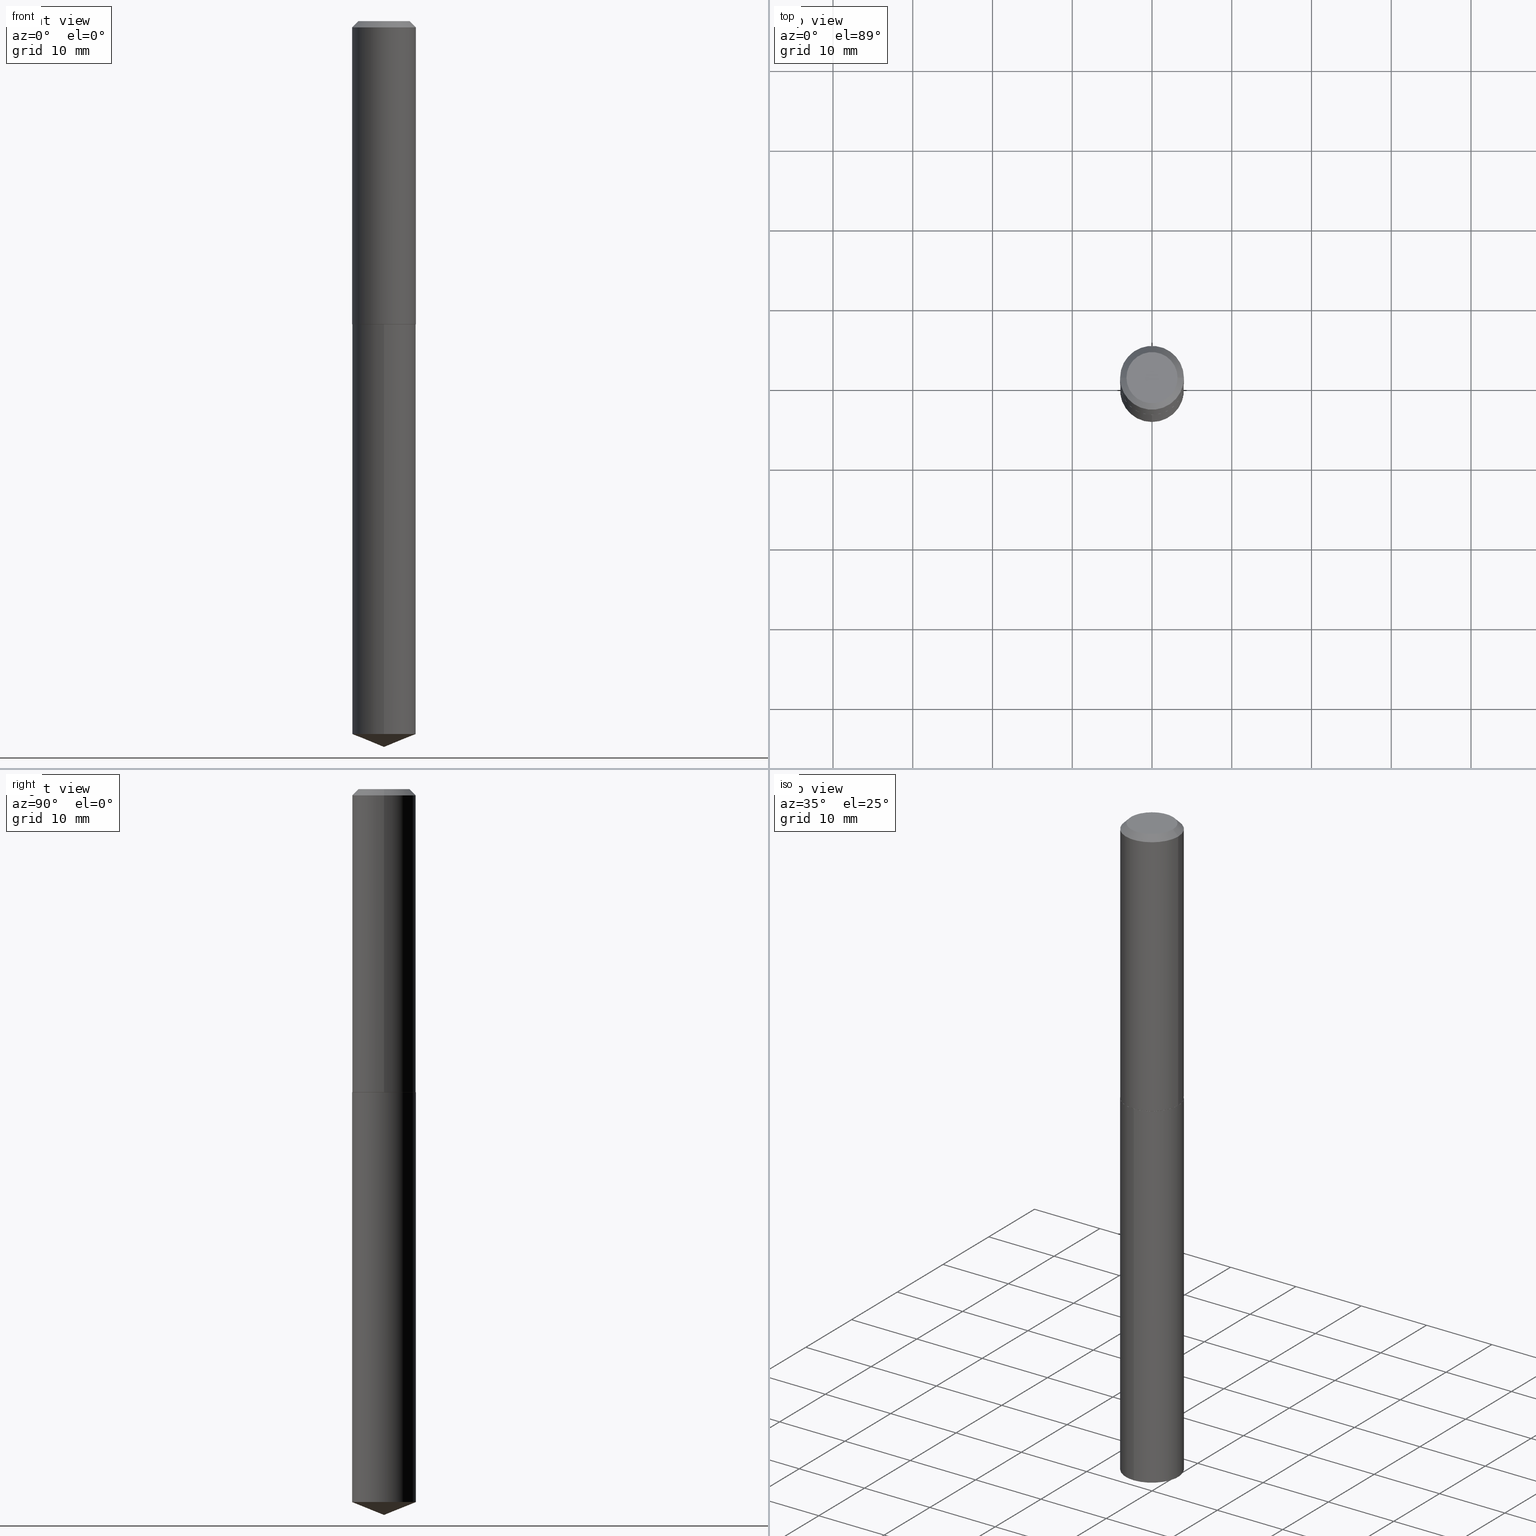
[diagram: canonical four-view strip — front | top / right | iso, engineering-drawing reading convention]
A machine part, canonical four-view strip (front | top / right | iso — engineering-drawing reading convention). The complete STEP part file that produces these views, byte-faithful:
ISO-10303-21;
HEADER;
FILE_DESCRIPTION (( 'STEP AP203' ),
    '1' );
FILE_NAME ('69273.STEP',
    '2024-04-23T14:49:53',
    ( '' ),
    ( '' ),
    'SwSTEP 2.0',
    'SolidWorks 2023',
    '' );
FILE_SCHEMA (( 'CONFIG_CONTROL_DESIGN' ));
ENDSEC;

DATA;
#1 = LINE ( 'NONE', #119, #308 ) ;
#2 = LINE ( 'NONE', #365, #187 ) ;
#3 = PLANE ( 'NONE',  #130 ) ;
#4 = CONICAL_SURFACE ( 'NONE', #369, 0.1575000000000000011, 0.7853981633974450594 ) ;
#5 = ORIENTED_EDGE ( 'NONE', *, *, #67, .T. ) ;
#6 = APPROVAL_PERSON_ORGANIZATION ( #148, #208, #299 ) ;
#7 = DIRECTION ( 'NONE',  ( -2.444198095015327587E-29, 3.493301069562700469E-15, 1.000000000000000000 ) ) ;
#8 = ORIENTED_EDGE ( 'NONE', *, *, #223, .T. ) ;
#9 = CC_DESIGN_DATE_AND_TIME_ASSIGNMENT ( #202, #349, ( #330 ) ) ;
#10 = AXIS2_PLACEMENT_3D ( 'NONE', #375, #7, #342 ) ;
#11 = CALENDAR_DATE ( 2024, 23, 4 ) ;
#12 = DIRECTION ( 'NONE',  ( -2.444198095015327587E-29, 3.493301069562700469E-15, 1.000000000000000000 ) ) ;
#13 = EDGE_CURVE ( 'NONE', #280, #236, #122, .T. ) ;
#14 = DIRECTION ( 'NONE',  ( -6.982962677686264344E-15, -1.000000000000000000, 3.469013325287953293E-15 ) ) ;
#15 = ORIENTED_EDGE ( 'NONE', *, *, #257, .T. ) ;
#16 = PERSON_AND_ORGANIZATION ( #184, #281 ) ;
#17 = DIRECTION ( 'NONE',  ( -2.444198095015327587E-29, 3.493301069562700469E-15, 1.000000000000000000 ) ) ;
#18 = CARTESIAN_POINT ( 'NONE',  ( 3.659399521575438742E-29, -5.224652675444883351E-15, -1.496400000000000174 ) ) ;
#19 = AXIS2_PLACEMENT_3D ( 'NONE', #258, #265, #108 ) ;
#20 = LINE ( 'NONE', #289, #345 ) ;
#21 = ORIENTED_EDGE ( 'NONE', *, *, #213, .T. ) ;
#22 = DIRECTION ( 'NONE',  ( 1.000000000000000000, 0.000000000000000000, 0.000000000000000000 ) ) ;
#23 = EDGE_LOOP ( 'NONE', ( #120, #347, #79, #102 ) ) ;
#24 = APPLICATION_PROTOCOL_DEFINITION ( 'international standard', 'config_control_design', 1994, #363 ) ;
#25 = CARTESIAN_POINT ( 'NONE',  ( 8.757561774439919102E-29, -1.251649773224315534E-14, -3.583000000000000185 ) ) ;
#26 = EDGE_LOOP ( 'NONE', ( #38, #15, #175 ) ) ;
#27 = COORDINATED_UNIVERSAL_TIME_OFFSET ( 5, 0, .BEHIND. ) ;
#28 = CIRCLE ( 'NONE', #205, 0.1575000000000001676 ) ;
#29 = ORIENTED_EDGE ( 'NONE', *, *, #313, .T. ) ;
#30 = CYLINDRICAL_SURFACE ( 'NONE', #41, 0.1575000000000000844 ) ;
#31 = EDGE_CURVE ( 'NONE', #230, #219, #216, .T. ) ;
#32 = DIRECTION ( 'NONE',  ( 1.000000000000000000, -6.982962677686265922E-15, 0.000000000000000000 ) ) ;
#33 = PRODUCT ( '69273', '69273', '', ( #360 ) ) ;
#34 = LINE ( 'NONE', #36, #333 ) ;
#35 = EDGE_CURVE ( 'NONE', #315, #217, #2, .T. ) ;
#36 = CARTESIAN_POINT ( 'NONE',  ( 8.761398106512951667E-29, -1.251105164214567024E-14, -3.583000000000000185 ) ) ;
#37 = AXIS2_PLACEMENT_3D ( 'NONE', #193, #318, #386 ) ;
#38 = ORIENTED_EDGE ( 'NONE', *, *, #206, .F. ) ;
#39 = EDGE_CURVE ( 'NONE', #75, #182, #91, .T. ) ;
#40 = AXIS2_PLACEMENT_3D ( 'NONE', #82, #12, #329 ) ;
#41 = AXIS2_PLACEMENT_3D ( 'NONE', #93, #198, #296 ) ;
#42 = ADVANCED_FACE ( 'NONE', ( #69 ), #180, .T. ) ;
#43 = ORIENTED_EDGE ( 'NONE', *, *, #13, .T. ) ;
#44 = EDGE_LOOP ( 'NONE', ( #29, #8, #379, #311 ) ) ;
#45 = APPROVAL_ROLE ( '' ) ;
#46 = EDGE_LOOP ( 'NONE', ( #196, #113, #100, #322 ) ) ;
#47 = CIRCLE ( 'NONE', #80, 0.1575000000000000011 ) ;
#48 = DIRECTION ( 'NONE',  ( 1.000000000000000000, -6.982962677686267499E-15, 0.000000000000000000 ) ) ;
#49 = ORIENTED_EDGE ( 'NONE', *, *, #290, .T. ) ;
#50 = EDGE_CURVE ( 'NONE', #314, #344, #28, .T. ) ;
#51 = DIRECTION ( 'NONE',  ( 0.7071067811866441621, -2.468850131083269169E-15, 0.7071067811864508723 ) ) ;
#52 = FACE_OUTER_BOUND ( 'NONE', #214, .T. ) ;
#53 = DIRECTION ( 'NONE',  ( -6.474490251793174685E-15, -0.9271838545667857590, 0.3746065934159162336 ) ) ;
#54 = CYLINDRICAL_SURFACE ( 'NONE', #126, 0.1575000000000000844 ) ;
#55 = DATE_AND_TIME ( #11, #90 ) ;
#56 = CIRCLE ( 'NONE', #272, 0.1262499999999999734 ) ;
#57 = CARTESIAN_POINT ( 'NONE',  ( 0.000000000000000000, 0.000000000000000000, 0.000000000000000000 ) ) ;
#58 = APPROVAL_STATUS ( 'not_yet_approved' ) ;
#59 = DIMENSIONAL_EXPONENTS ( 1.000000000000000000, 0.000000000000000000, 0.000000000000000000, 0.000000000000000000, 0.000000000000000000, 0.000000000000000000, 0.000000000000000000 ) ;
#60 = LINE ( 'NONE', #25, #261 ) ;
#61 = VERTEX_POINT ( 'NONE', #235 ) ;
#62 = PERSON_AND_ORGANIZATION_ROLE ( 'design_owner' ) ;
#63 = EDGE_CURVE ( 'NONE', #217, #182, #319, .T. ) ;
#64 = CIRCLE ( 'NONE', #248, 0.1575000000000000011 ) ;
#65 = LOCAL_TIME ( 10, 49, 53.00000000000000000, #323 ) ;
#66 = EDGE_LOOP ( 'NONE', ( #283, #359, #5, #49 ) ) ;
#67 = EDGE_CURVE ( 'NONE', #337, #236, #20, .T. ) ;
#68 = UNCERTAINTY_MEASURE_WITH_UNIT (LENGTH_MEASURE( 1.000000000000000082E-05 ), #237, 'distance_accuracy_value', 'NONE');
#69 = FACE_OUTER_BOUND ( 'NONE', #23, .T. ) ;
#70 = CARTESIAN_POINT ( 'NONE',  ( 7.642090019328602662E-31, -1.091087918388490267E-16, -0.03125000000000020817 ) ) ;
#71 = ORIENTED_EDGE ( 'NONE', *, *, #241, .F. ) ;
#72 = PRODUCT_DEFINITION_FORMATION_WITH_SPECIFIED_SOURCE ( 'ANY', '', #33, .NOT_KNOWN. ) ;
#73 = DIRECTION ( 'NONE',  ( 1.000000000000000000, -6.982962677686267499E-15, 0.000000000000000000 ) ) ;
#74 = DIRECTION ( 'NONE',  ( 1.000000000000000000, -6.982962677686265922E-15, 0.000000000000000000 ) ) ;
#75 = VERTEX_POINT ( 'NONE', #262 ) ;
#76 = ORIENTED_EDGE ( 'NONE', *, *, #357, .T. ) ;
#77 = DATE_AND_TIME ( #220, #275 ) ;
#78 = CC_DESIGN_DATE_AND_TIME_ASSIGNMENT ( #77, #188, ( #240 ) ) ;
#79 = ORIENTED_EDGE ( 'NONE', *, *, #35, .T. ) ;
#80 = AXIS2_PLACEMENT_3D ( 'NONE', #173, #104, #232 ) ;
#81 = DIRECTION ( 'NONE',  ( -2.438088387897960049E-29, 3.491481338843145188E-15, 1.000000000000000000 ) ) ;
#82 = CARTESIAN_POINT ( 'NONE',  ( 3.659399521575438742E-29, -5.224652675444883351E-15, -1.496400000000000174 ) ) ;
#83 = FACE_OUTER_BOUND ( 'NONE', #224, .T. ) ;
#84 = DIRECTION ( 'NONE',  ( 1.000000000000000000, -6.982962677686267499E-15, 4.876176775795936353E-29 ) ) ;
#85 = CONICAL_SURFACE ( 'NONE', #37, 0.1575000000000000011, 0.7853981633974450594 ) ;
#86 = CARTESIAN_POINT ( 'NONE',  ( 0.1575000000000001676, -6.322723556511050117E-15, -1.495900000000000230 ) ) ;
#87 = EDGE_LOOP ( 'NONE', ( #146, #133, #207 ) ) ;
#88 = EDGE_CURVE ( 'NONE', #75, #315, #64, .T. ) ;
#89 = CLOSED_SHELL ( 'NONE', ( #153, #371, #238, #42, #135 ) ) ;
#90 = LOCAL_TIME ( 10, 49, 53.00000000000000000, #132 ) ;
#91 = LINE ( 'NONE', #211, #149 ) ;
#92 = CARTESIAN_POINT ( 'NONE',  ( -0.1570000000000003892, -4.106451353127413078E-15, -1.496399999999999952 ) ) ;
#93 = CARTESIAN_POINT ( 'NONE',  ( 0.000000000000000000, 0.000000000000000000, 0.000000000000000000 ) ) ;
#94 = DIRECTION ( 'NONE',  ( 0.7071067811865452413, -7.319954787623248157E-15, -0.7071067811865497932 ) ) ;
#95 = VECTOR ( 'NONE', #94, 39.37007874015748143 ) ;
#96 = EDGE_LOOP ( 'NONE', ( #317, #276 ) ) ;
#97 = CONICAL_SURFACE ( 'NONE', #106, 0.1575000000000001676, 0.7853981633975849475 ) ;
#98 = AXIS2_PLACEMENT_3D ( 'NONE', #292, #147, #22 ) ;
#99 = PERSON_AND_ORGANIZATION ( #184, #281 ) ;
#100 = ORIENTED_EDGE ( 'NONE', *, *, #63, .F. ) ;
#101 = EDGE_CURVE ( 'NONE', #315, #75, #47, .T. ) ;
#102 = ORIENTED_EDGE ( 'NONE', *, *, #185, .F. ) ;
#103 = SHAPE_DEFINITION_REPRESENTATION ( #194, #222 ) ;
#104 = DIRECTION ( 'NONE',  ( -2.444198095015327587E-29, 3.493301069562700469E-15, 1.000000000000000000 ) ) ;
#105 = ORIENTED_EDGE ( 'NONE', *, *, #290, .F. ) ;
#106 = AXIS2_PLACEMENT_3D ( 'NONE', #269, #143, #111 ) ;
#107 = CARTESIAN_POINT ( 'NONE',  ( 3.658176787172346501E-29, -5.222906934775461847E-15, -1.495900000000000230 ) ) ;
#108 = DIRECTION ( 'NONE',  ( 6.982962677686265922E-15, 1.000000000000000000, -3.493301069562700469E-15 ) ) ;
#109 = PERSON_AND_ORGANIZATION_ROLE ( 'creator' ) ;
#110 = ADVANCED_FACE ( 'NONE', ( #136 ), #112, .F. ) ;
#111 = DIRECTION ( 'NONE',  ( 1.000000000000000000, -6.982962677686267499E-15, 0.000000000000000000 ) ) ;
#112 = PLANE ( 'NONE',  #301 ) ;
#113 = ORIENTED_EDGE ( 'NONE', *, *, #39, .T. ) ;
#114 = DIRECTION ( 'NONE',  ( 1.000000000000000000, -6.982962677686267499E-15, 0.000000000000000000 ) ) ;
#115 = CARTESIAN_POINT ( 'NONE',  ( 1.119104808822244181E-15, 0.1574999999999947553, -1.496400000000000841 ) ) ;
#116 = CC_DESIGN_APPROVAL ( #124, ( #330 ) ) ;
#117 = EDGE_CURVE ( 'NONE', #219, #230, #183, .T. ) ;
#118 = LINE ( 'NONE', #382, #95 ) ;
#119 = CARTESIAN_POINT ( 'NONE',  ( 0.1575000000000000844, -1.099816621735587677E-15, 7.679978421878603638E-30 ) ) ;
#120 = ORIENTED_EDGE ( 'NONE', *, *, #39, .F. ) ;
#121 = DIRECTION ( 'NONE',  ( 6.588037525764786557E-15, 0.9271838545667882014, 0.3746065934159097943 ) ) ;
#122 = CIRCLE ( 'NONE', #288, 0.1575000000000000011 ) ;
#123 = DIRECTION ( 'NONE',  ( -2.444198095015327587E-29, 3.493301069562700469E-15, 1.000000000000000000 ) ) ;
#124 = APPROVAL ( #58, 'UNSPECIFIED' ) ;
#125 = PERSON_AND_ORGANIZATION_ROLE ( 'creator' ) ;
#126 = AXIS2_PLACEMENT_3D ( 'NONE', #57, #387, #84 ) ;
#127 = EDGE_CURVE ( 'NONE', #219, #344, #328, .T. ) ;
#128 = CARTESIAN_POINT ( 'NONE',  ( -0.1262499999999999734, 9.361534339773144209E-16, 4.825108388634215244E-18 ) ) ;
#129 = APPLICATION_CONTEXT ( 'configuration controlled 3d designs of mechanical parts and assemblies' ) ;
#130 = AXIS2_PLACEMENT_3D ( 'NONE', #244, #212, #335 ) ;
#131 = LOCAL_TIME ( 10, 49, 53.00000000000000000, #27 ) ;
#132 = COORDINATED_UNIVERSAL_TIME_OFFSET ( 5, 0, .BEHIND. ) ;
#133 = ORIENTED_EDGE ( 'NONE', *, *, #206, .T. ) ;
#134 = PERSON_AND_ORGANIZATION ( #184, #281 ) ;
#135 = ADVANCED_FACE ( 'NONE', ( #138 ), #294, .F. ) ;
#136 = FACE_OUTER_BOUND ( 'NONE', #295, .T. ) ;
#137 = VERTEX_POINT ( 'NONE', #383 ) ;
#138 = FACE_OUTER_BOUND ( 'NONE', #96, .T. ) ;
#139 = APPROVAL_DATE_TIME ( #377, #124 ) ;
#140 = CIRCLE ( 'NONE', #210, 0.1575000000000000011 ) ;
#141 = VECTOR ( 'NONE', #326, 39.37007874015748143 ) ;
#142 = LINE ( 'NONE', #266, #141 ) ;
#143 = DIRECTION ( 'NONE',  ( -2.445468806185136597E-29, 3.491481338843145583E-15, 1.000000000000000000 ) ) ;
#144 = DIRECTION ( 'NONE',  ( -2.445468806185136597E-29, 3.491481338843145583E-15, 1.000000000000000000 ) ) ;
#145 = ADVANCED_FACE ( 'NONE', ( #378 ), #54, .T. ) ;
#146 = ORIENTED_EDGE ( 'NONE', *, *, #257, .F. ) ;
#147 = DIRECTION ( 'NONE',  ( 0.000000000000000000, 0.000000000000000000, 1.000000000000000000 ) ) ;
#148 = PERSON_AND_ORGANIZATION ( #184, #281 ) ;
#149 = VECTOR ( 'NONE', #334, 39.37007874015748143 ) ;
#150 = FACE_OUTER_BOUND ( 'NONE', #246, .T. ) ;
#151 = DIRECTION ( 'NONE',  ( 1.000000000000000000, -6.982962677686267499E-15, 4.876009584780190244E-29 ) ) ;
#152 = CARTESIAN_POINT ( 'NONE',  ( 0.1575000000000000011, -1.208925413574435989E-15, -0.03125000000000020817 ) ) ;
#153 = ADVANCED_FACE ( 'NONE', ( #203 ), #167, .T. ) ;
#154 = CIRCLE ( 'NONE', #274, 0.1262499999999999734 ) ;
#155 = ADVANCED_FACE ( 'NONE', ( #250 ), #85, .T. ) ;
#156 = MANIFOLD_SOLID_BREP ( 'Body-Move/Copy2[1]', #89 ) ;
#157 = DIRECTION ( 'NONE',  ( -2.445468806185136877E-29, 3.491481338843145188E-15, 1.000000000000000000 ) ) ;
#158 = FACE_OUTER_BOUND ( 'NONE', #87, .T. ) ;
#159 = AXIS2_PLACEMENT_3D ( 'NONE', #354, #298, #73 ) ;
#160 = CC_DESIGN_APPROVAL ( #208, ( #240 ) ) ;
#161 = COORDINATED_UNIVERSAL_TIME_OFFSET ( 5, 0, .BEHIND. ) ;
#162 = ORIENTED_EDGE ( 'NONE', *, *, #357, .F. ) ;
#163 = CIRCLE ( 'NONE', #159, 0.1575000000000001676 ) ;
#164 = EDGE_LOOP ( 'NONE', ( #21, #368 ) ) ;
#165 = ORIENTED_EDGE ( 'NONE', *, *, #31, .T. ) ;
#166 = DIRECTION ( 'NONE',  ( -1.000000000000000000, 6.982962677686265922E-15, 0.000000000000000000 ) ) ;
#167 = CYLINDRICAL_SURFACE ( 'NONE', #10, 0.1575000000000000011 ) ;
#168 = FACE_OUTER_BOUND ( 'NONE', #26, .T. ) ;
#169 = CARTESIAN_POINT ( 'NONE',  ( 0.1570000000000003892, -6.320977815841629402E-15, -1.496399999999999952 ) ) ;
#170 = PRODUCT_RELATED_PRODUCT_CATEGORY ( 'detail', '', ( #33 ) ) ;
#171 = VECTOR ( 'NONE', #51, 39.37007874015748143 ) ;
#172 = AXIS2_PLACEMENT_3D ( 'NONE', #287, #17, #263 ) ;
#173 = CARTESIAN_POINT ( 'NONE',  ( 8.603928845919622629E-29, -1.229148151081690217E-14, -3.519365869430962412 ) ) ;
#174 = DIRECTION ( 'NONE',  ( 2.445468806185136597E-29, -3.491481338843145583E-15, -1.000000000000000000 ) ) ;
#175 = ORIENTED_EDGE ( 'NONE', *, *, #101, .F. ) ;
#176 = ADVANCED_FACE ( 'NONE', ( #83 ), #361, .T. ) ;
#177 = APPROVAL_STATUS ( 'not_yet_approved' ) ;
#178 = CC_DESIGN_PERSON_AND_ORGANIZATION_ASSIGNMENT ( #297, #62, ( #33 ) ) ;
#179 = CARTESIAN_POINT ( 'NONE',  ( -8.746880819066194445E-28, 1.250177634845654589E-13, 35.78707874015748303 ) ) ;
#180 = CYLINDRICAL_SURFACE ( 'NONE', #381, 0.1575000000000000011 ) ;
#181 = DIRECTION ( 'NONE',  ( -2.445468806185136597E-29, 3.491481338843145583E-15, 1.000000000000000000 ) ) ;
#182 = VERTEX_POINT ( 'NONE', #115 ) ;
#183 = CIRCLE ( 'NONE', #312, 0.1570000000000003892 ) ;
#184 = PERSON ( 'UNSPECIFIED', 'UNSPECIFIED', 'UNSPECIFIED', ('UNSPECIFIED'), ('UNSPECIFIED'), ('UNSPECIFIED') ) ;
#185 = EDGE_CURVE ( 'NONE', #182, #217, #140, .T. ) ;
#186 = CARTESIAN_POINT ( 'NONE',  ( -1.179965205088274384E-46, 1.684677589683407292E-32, 4.825108388640570813E-18 ) ) ;
#187 = VECTOR ( 'NONE', #242, 39.37007874015748143 ) ;
#188 = DATE_TIME_ROLE ( 'creation_date' ) ;
#189 = CARTESIAN_POINT ( 'NONE',  ( 3.658176787172346501E-29, -5.222906934775461847E-15, -1.495900000000000230 ) ) ;
#190 = ORIENTED_EDGE ( 'NONE', *, *, #31, .F. ) ;
#191 = FACE_OUTER_BOUND ( 'NONE', #44, .T. ) ;
#192 = ORIENTED_EDGE ( 'NONE', *, *, #50, .T. ) ;
#193 = CARTESIAN_POINT ( 'NONE',  ( 7.642090019328602662E-31, -1.091087918388490267E-16, -0.03125000000000020817 ) ) ;
#194 = PRODUCT_DEFINITION_SHAPE ( 'NONE', 'NONE',  #240 ) ;
#195 = CC_DESIGN_SECURITY_CLASSIFICATION ( #330, ( #72 ) ) ;
#196 = ORIENTED_EDGE ( 'NONE', *, *, #101, .T. ) ;
#197 = CALENDAR_DATE ( 2024, 23, 4 ) ;
#198 = DIRECTION ( 'NONE',  ( -2.445468806185136597E-29, 3.491481338843145583E-15, 1.000000000000000000 ) ) ;
#199 = CARTESIAN_POINT ( 'NONE',  ( -0.1575000000000001676, -4.103802125953303455E-15, -1.495900000000000230 ) ) ;
#200 = DIRECTION ( 'NONE',  ( -0.7071067811865452413, 2.468850131082233000E-15, -0.7071067811865497932 ) ) ;
#201 = DIRECTION ( 'NONE',  ( -2.444198095015327587E-29, 3.493301069562700469E-15, 1.000000000000000000 ) ) ;
#202 = DATE_AND_TIME ( #197, #303 ) ;
#203 = FACE_OUTER_BOUND ( 'NONE', #46, .T. ) ;
#204 = ORIENTED_EDGE ( 'NONE', *, *, #127, .F. ) ;
#205 = AXIS2_PLACEMENT_3D ( 'NONE', #189, #225, #48 ) ;
#206 = EDGE_CURVE ( 'NONE', #137, #315, #60, .T. ) ;
#207 = ORIENTED_EDGE ( 'NONE', *, *, #88, .F. ) ;
#208 = APPROVAL ( #177, 'UNSPECIFIED' ) ;
#209 = CARTESIAN_POINT ( 'NONE',  ( 3.659399521575438182E-29, -5.224652675444882562E-15, -1.496399999999999952 ) ) ;
#210 = AXIS2_PLACEMENT_3D ( 'NONE', #18, #355, #327 ) ;
#211 = CARTESIAN_POINT ( 'NONE',  ( 1.119104808822194088E-15, 0.1574999999999947553, -1.496400000000000841 ) ) ;
#212 = DIRECTION ( 'NONE',  ( 2.438088387897960049E-29, -3.491481338843145188E-15, -1.000000000000000000 ) ) ;
#213 = EDGE_CURVE ( 'NONE', #337, #61, #56, .T. ) ;
#214 = EDGE_LOOP ( 'NONE', ( #71, #253, #43, #376 ) ) ;
#215 = CARTESIAN_POINT ( 'NONE',  ( -0.1575000000000000844, 1.119104808822158392E-15, -7.747322767151481189E-30 ) ) ;
#216 = CIRCLE ( 'NONE', #243, 0.1570000000000003892 ) ;
#217 = VERTEX_POINT ( 'NONE', #300 ) ;
#218 = CC_DESIGN_PERSON_AND_ORGANIZATION_ASSIGNMENT ( #385, #109, ( #72 ) ) ;
#219 = VERTEX_POINT ( 'NONE', #169 ) ;
#220 = CALENDAR_DATE ( 2024, 23, 4 ) ;
#221 = ADVANCED_FACE ( 'NONE', ( #150 ), #97, .T. ) ;
#222 = ADVANCED_BREP_SHAPE_REPRESENTATION ( '69273', ( #156, #277, #98 ), #321 ) ;
#223 = EDGE_CURVE ( 'NONE', #314, #236, #234, .T. ) ;
#224 = EDGE_LOOP ( 'NONE', ( #162, #165, #254, #374 ) ) ;
#225 = DIRECTION ( 'NONE',  ( -2.445468806185136597E-29, 3.491481338843145583E-15, 1.000000000000000000 ) ) ;
#226 = EDGE_LOOP ( 'NONE', ( #331, #192, #302, #105 ) ) ;
#227 = CONICAL_SURFACE ( 'NONE', #252, 97.44436430772789492, 1.186823891356143079 ) ;
#228 = DIRECTION ( 'NONE',  ( 1.000000000000000000, -6.982962677686265922E-15, 4.876176775795935793E-29 ) ) ;
#229 = CONICAL_SURFACE ( 'NONE', #172, 97.44436430772789492, 1.186823891356143079 ) ;
#230 = VERTEX_POINT ( 'NONE', #92 ) ;
#231 = APPROVAL_DATE_TIME ( #55, #309 ) ;
#232 = DIRECTION ( 'NONE',  ( -6.982962677686264344E-15, -1.000000000000000000, 3.469013325287953293E-15 ) ) ;
#233 =( LENGTH_UNIT ( ) NAMED_UNIT ( * ) SI_UNIT ( $, .METRE. ) );
#234 = LINE ( 'NONE', #215, #364 ) ;
#235 = CARTESIAN_POINT ( 'NONE',  ( 0.1262499999999999734, -1.027887549353260543E-15, 4.825108388647246856E-18 ) ) ;
#236 = VERTEX_POINT ( 'NONE', #339 ) ;
#237 =( CONVERSION_BASED_UNIT ( 'INCH', #390 ) LENGTH_UNIT ( ) NAMED_UNIT ( #59 ) );
#238 = ADVANCED_FACE ( 'NONE', ( #158 ), #227, .T. ) ;
#239 = APPLICATION_PROTOCOL_DEFINITION ( 'international standard', 'config_control_design', 1994, #129 ) ;
#240 = PRODUCT_DEFINITION ( 'UNKNOWN', '', #72, #306 ) ;
#241 = EDGE_CURVE ( 'NONE', #61, #337, #154, .T. ) ;
#242 = DIRECTION ( 'NONE',  ( -2.444198095015327587E-29, 3.493301069562700469E-15, 1.000000000000000000 ) ) ;
#243 = AXIS2_PLACEMENT_3D ( 'NONE', #209, #304, #32 ) ;
#244 = CARTESIAN_POINT ( 'NONE',  ( -5.899826025441371921E-47, 8.423387948417036461E-33, 2.412554194320285406E-18 ) ) ;
#245 = CC_DESIGN_APPROVAL ( #309, ( #72 ) ) ;
#246 = EDGE_LOOP ( 'NONE', ( #259, #76, #372, #204 ) ) ;
#247 = CARTESIAN_POINT ( 'NONE',  ( 7.642090019328602662E-31, -1.091087918388490267E-16, -0.03125000000000020817 ) ) ;
#248 = AXIS2_PLACEMENT_3D ( 'NONE', #356, #201, #14 ) ;
#249 = EDGE_CURVE ( 'NONE', #344, #280, #1, .T. ) ;
#250 = FACE_OUTER_BOUND ( 'NONE', #66, .T. ) ;
#251 = PERSON_AND_ORGANIZATION ( #184, #281 ) ;
#252 = AXIS2_PLACEMENT_3D ( 'NONE', #179, #123, #370 ) ;
#253 = ORIENTED_EDGE ( 'NONE', *, *, #346, .T. ) ;
#254 = ORIENTED_EDGE ( 'NONE', *, *, #127, .T. ) ;
#255 = APPROVAL_ROLE ( '' ) ;
#256 = CALENDAR_DATE ( 2024, 23, 4 ) ;
#257 = EDGE_CURVE ( 'NONE', #137, #75, #34, .T. ) ;
#258 = CARTESIAN_POINT ( 'NONE',  ( 3.659399521575438742E-29, -5.224652675444883351E-15, -1.496400000000000174 ) ) ;
#259 = ORIENTED_EDGE ( 'NONE', *, *, #117, .T. ) ;
#260 = CALENDAR_DATE ( 2024, 23, 4 ) ;
#261 = VECTOR ( 'NONE', #53, 39.37007874015748854 ) ;
#262 = CARTESIAN_POINT ( 'NONE',  ( 1.119104808822243589E-15, 0.1574999999999877331, -3.519365869430963301 ) ) ;
#263 = DIRECTION ( 'NONE',  ( -6.982962677686266711E-15, -1.000000000000000000, 3.498761904101846490E-15 ) ) ;
#264 = CARTESIAN_POINT ( 'NONE',  ( -1.179965205088274384E-46, 1.684677589683407292E-32, 4.825108388640570813E-18 ) ) ;
#265 = DIRECTION ( 'NONE',  ( 2.444198095015327307E-29, -3.493301069562700469E-15, -1.000000000000000000 ) ) ;
#266 = CARTESIAN_POINT ( 'NONE',  ( -0.1575000000000001676, -4.103802125953303455E-15, -1.495900000000000230 ) ) ;
#267 = DIRECTION ( 'NONE',  ( -2.445468806185136597E-29, 3.491481338843145583E-15, 1.000000000000000000 ) ) ;
#268 = PERSON_AND_ORGANIZATION ( #184, #281 ) ;
#269 = CARTESIAN_POINT ( 'NONE',  ( 3.658176787172346501E-29, -5.222906934775461847E-15, -1.495900000000000230 ) ) ;
#270 = CARTESIAN_POINT ( 'NONE',  ( -1.099816621735501100E-15, -0.1575000000000123246, -3.519365869430961968 ) ) ;
#271 = FACE_OUTER_BOUND ( 'NONE', #164, .T. ) ;
#272 = AXIS2_PLACEMENT_3D ( 'NONE', #264, #267, #362 ) ;
#273 = DATE_AND_TIME ( #256, #131 ) ;
#274 = AXIS2_PLACEMENT_3D ( 'NONE', #186, #310, #151 ) ;
#275 = LOCAL_TIME ( 10, 49, 53.00000000000000000, #161 ) ;
#276 = ORIENTED_EDGE ( 'NONE', *, *, #185, .T. ) ;
#277 = MANIFOLD_SOLID_BREP ( 'Body-Move/Copy2[2]', #320 ) ;
#278 = DIRECTION ( 'NONE',  ( -6.982962677686264344E-15, -1.000000000000000000, 3.469013325287953293E-15 ) ) ;
#279 = CC_DESIGN_PERSON_AND_ORGANIZATION_ASSIGNMENT ( #251, #125, ( #240 ) ) ;
#280 = VERTEX_POINT ( 'NONE', #152 ) ;
#281 = ORGANIZATION ( 'UNSPECIFIED', 'UNSPECIFIED', '' ) ;
#282 = DIRECTION ( 'NONE',  ( -2.444198095015327587E-29, 3.493301069562700469E-15, 1.000000000000000000 ) ) ;
#283 = ORIENTED_EDGE ( 'NONE', *, *, #346, .F. ) ;
#284 = ADVANCED_FACE ( 'NONE', ( #271 ), #3, .F. ) ;
#285 = DIRECTION ( 'NONE',  ( 1.000000000000000000, -6.982962677686265922E-15, 0.000000000000000000 ) ) ;
#286 = PERSON_AND_ORGANIZATION_ROLE ( 'design_supplier' ) ;
#287 = CARTESIAN_POINT ( 'NONE',  ( -8.746880819066194445E-28, 1.250177634845654589E-13, 35.78707874015748303 ) ) ;
#288 = AXIS2_PLACEMENT_3D ( 'NONE', #247, #340, #74 ) ;
#289 = CARTESIAN_POINT ( 'NONE',  ( -0.1575000000000000011, 9.907078298967379852E-16, -0.03125000000000020817 ) ) ;
#290 = EDGE_CURVE ( 'NONE', #236, #280, #338, .T. ) ;
#291 = APPROVAL_PERSON_ORGANIZATION ( #99, #309, #45 ) ;
#292 = CARTESIAN_POINT ( 'NONE',  ( 0.000000000000000000, 0.000000000000000000, 0.000000000000000000 ) ) ;
#293 = DIRECTION ( 'NONE',  ( -2.445468806185136597E-29, 3.491481338843145583E-15, 1.000000000000000000 ) ) ;
#294 = PLANE ( 'NONE',  #19 ) ;
#295 = EDGE_LOOP ( 'NONE', ( #348, #190 ) ) ;
#296 = DIRECTION ( 'NONE',  ( 1.000000000000000000, -6.982962677686267499E-15, 4.876176775795936353E-29 ) ) ;
#297 = PERSON_AND_ORGANIZATION ( #184, #281 ) ;
#298 = DIRECTION ( 'NONE',  ( -2.445468806185136597E-29, 3.491481338843145583E-15, 1.000000000000000000 ) ) ;
#299 = APPROVAL_ROLE ( '' ) ;
#300 = CARTESIAN_POINT ( 'NONE',  ( -1.099816621735550009E-15, -0.1575000000000052192, -1.496399999999999730 ) ) ;
#301 = AXIS2_PLACEMENT_3D ( 'NONE', #353, #81, #228 ) ;
#302 = ORIENTED_EDGE ( 'NONE', *, *, #249, .T. ) ;
#303 = LOCAL_TIME ( 10, 49, 53.00000000000000000, #380 ) ;
#304 = DIRECTION ( 'NONE',  ( -2.445468806185136597E-29, 3.491481338843145583E-15, 1.000000000000000000 ) ) ;
#305 = DIRECTION ( 'NONE',  ( -2.445468806185136877E-29, 3.491481338843145188E-15, 1.000000000000000000 ) ) ;
#306 = DESIGN_CONTEXT ( 'detailed design', #363, 'design' ) ;
#307 = DIRECTION ( 'NONE',  ( 1.000000000000000000, -6.982962677686265922E-15, 0.000000000000000000 ) ) ;
#308 = VECTOR ( 'NONE', #305, 39.37007874015748143 ) ;
#309 = APPROVAL ( #316, 'UNSPECIFIED' ) ;
#310 = DIRECTION ( 'NONE',  ( -2.445468806185136597E-29, 3.491481338843145583E-15, 1.000000000000000000 ) ) ;
#311 = ORIENTED_EDGE ( 'NONE', *, *, #249, .F. ) ;
#312 = AXIS2_PLACEMENT_3D ( 'NONE', #324, #144, #285 ) ;
#313 = EDGE_CURVE ( 'NONE', #344, #314, #163, .T. ) ;
#314 = VERTEX_POINT ( 'NONE', #199 ) ;
#315 = VERTEX_POINT ( 'NONE', #270 ) ;
#316 = APPROVAL_STATUS ( 'not_yet_approved' ) ;
#317 = ORIENTED_EDGE ( 'NONE', *, *, #63, .T. ) ;
#318 = DIRECTION ( 'NONE',  ( 2.445468806185136597E-29, -3.491481338843145583E-15, -1.000000000000000000 ) ) ;
#319 = CIRCLE ( 'NONE', #40, 0.1575000000000000011 ) ;
#320 = CLOSED_SHELL ( 'NONE', ( #366, #336, #221, #110, #176, #145, #155, #284 ) ) ;
#321 =( GEOMETRIC_REPRESENTATION_CONTEXT ( 3 ) GLOBAL_UNCERTAINTY_ASSIGNED_CONTEXT ( ( #68 ) ) GLOBAL_UNIT_ASSIGNED_CONTEXT ( ( #237, #389, #332 ) ) REPRESENTATION_CONTEXT ( 'NONE', 'WORKASPACE' ) );
#322 = ORIENTED_EDGE ( 'NONE', *, *, #35, .F. ) ;
#323 = COORDINATED_UNIVERSAL_TIME_OFFSET ( 5, 0, .BEHIND. ) ;
#324 = CARTESIAN_POINT ( 'NONE',  ( 3.659399521575438182E-29, -5.224652675444882562E-15, -1.496399999999999952 ) ) ;
#325 = SECURITY_CLASSIFICATION_LEVEL ( 'unclassified' ) ;
#326 = DIRECTION ( 'NONE',  ( -0.7071067811866441621, 7.493145998870704414E-15, 0.7071067811864508723 ) ) ;
#327 = DIRECTION ( 'NONE',  ( -6.982962677686264344E-15, -1.000000000000000000, 3.469013325287953293E-15 ) ) ;
#328 = LINE ( 'NONE', #358, #171 ) ;
#329 = DIRECTION ( 'NONE',  ( -6.982962677686264344E-15, -1.000000000000000000, 3.469013325287953293E-15 ) ) ;
#330 = SECURITY_CLASSIFICATION ( '', '', #325 ) ;
#331 = ORIENTED_EDGE ( 'NONE', *, *, #223, .F. ) ;
#332 =( NAMED_UNIT ( * ) SI_UNIT ( $, .STERADIAN. ) SOLID_ANGLE_UNIT ( ) );
#333 = VECTOR ( 'NONE', #121, 39.37007874015748143 ) ;
#334 = DIRECTION ( 'NONE',  ( -2.444198095015327587E-29, 3.493301069562700469E-15, 1.000000000000000000 ) ) ;
#335 = DIRECTION ( 'NONE',  ( -1.000000000000000000, 6.982962677686265922E-15, -4.876176775795935793E-29 ) ) ;
#336 = ADVANCED_FACE ( 'NONE', ( #191 ), #30, .T. ) ;
#337 = VERTEX_POINT ( 'NONE', #128 ) ;
#338 = CIRCLE ( 'NONE', #373, 0.1575000000000000011 ) ;
#339 = CARTESIAN_POINT ( 'NONE',  ( -0.1575000000000000011, -1.546903054484996885E-15, -0.03125000000000020817 ) ) ;
#340 = DIRECTION ( 'NONE',  ( -2.445468806185136597E-29, 3.491481338843145583E-15, 1.000000000000000000 ) ) ;
#341 = APPROVAL_DATE_TIME ( #273, #208 ) ;
#342 = DIRECTION ( 'NONE',  ( -6.982962677686264344E-15, -1.000000000000000000, 3.469013325287953293E-15 ) ) ;
#343 = CARTESIAN_POINT ( 'NONE',  ( 3.659399521575438742E-29, -5.224652675444883351E-15, -1.496400000000000174 ) ) ;
#344 = VERTEX_POINT ( 'NONE', #86 ) ;
#345 = VECTOR ( 'NONE', #200, 39.37007874015748143 ) ;
#346 = EDGE_CURVE ( 'NONE', #61, #280, #118, .T. ) ;
#347 = ORIENTED_EDGE ( 'NONE', *, *, #88, .T. ) ;
#348 = ORIENTED_EDGE ( 'NONE', *, *, #117, .F. ) ;
#349 = DATE_TIME_ROLE ( 'classification_date' ) ;
#350 = CARTESIAN_POINT ( 'NONE',  ( 7.642090019328602662E-31, -1.091087918388490267E-16, -0.03125000000000020817 ) ) ;
#351 = AXIS2_PLACEMENT_3D ( 'NONE', #107, #293, #114 ) ;
#352 = APPROVAL_PERSON_ORGANIZATION ( #16, #124, #255 ) ;
#353 = CARTESIAN_POINT ( 'NONE',  ( 5.477610595334249155E-29, -2.620870931674691509E-15, -1.496399999999999952 ) ) ;
#354 = CARTESIAN_POINT ( 'NONE',  ( 3.658176787172346501E-29, -5.222906934775461847E-15, -1.495900000000000230 ) ) ;
#355 = DIRECTION ( 'NONE',  ( -2.444198095015327587E-29, 3.493301069562700469E-15, 1.000000000000000000 ) ) ;
#356 = CARTESIAN_POINT ( 'NONE',  ( 8.603928845919622629E-29, -1.229148151081690217E-14, -3.519365869430962412 ) ) ;
#357 = EDGE_CURVE ( 'NONE', #230, #314, #142, .T. ) ;
#358 = CARTESIAN_POINT ( 'NONE',  ( 0.1575000000000001676, -6.322723556511050117E-15, -1.495900000000000230 ) ) ;
#359 = ORIENTED_EDGE ( 'NONE', *, *, #213, .F. ) ;
#360 = MECHANICAL_CONTEXT ( 'NONE', #129, 'mechanical' ) ;
#361 = CONICAL_SURFACE ( 'NONE', #351, 0.1575000000000001676, 0.7853981633975849475 ) ;
#362 = DIRECTION ( 'NONE',  ( 1.000000000000000000, -6.982962677686267499E-15, 4.876009584780190244E-29 ) ) ;
#363 = APPLICATION_CONTEXT ( 'configuration controlled 3d designs of mechanical parts and assemblies' ) ;
#364 = VECTOR ( 'NONE', #157, 39.37007874015748143 ) ;
#365 = CARTESIAN_POINT ( 'NONE',  ( -1.099816621735550009E-15, -0.1575000000000052192, -1.496399999999999730 ) ) ;
#366 = ADVANCED_FACE ( 'NONE', ( #52 ), #4, .T. ) ;
#367 = CC_DESIGN_PERSON_AND_ORGANIZATION_ASSIGNMENT ( #134, #388, ( #330 ) ) ;
#368 = ORIENTED_EDGE ( 'NONE', *, *, #241, .T. ) ;
#369 = AXIS2_PLACEMENT_3D ( 'NONE', #350, #174, #166 ) ;
#370 = DIRECTION ( 'NONE',  ( -6.982962677686266711E-15, -1.000000000000000000, 3.498761904101846490E-15 ) ) ;
#371 = ADVANCED_FACE ( 'NONE', ( #168 ), #229, .T. ) ;
#372 = ORIENTED_EDGE ( 'NONE', *, *, #313, .F. ) ;
#373 = AXIS2_PLACEMENT_3D ( 'NONE', #70, #181, #307 ) ;
#374 = ORIENTED_EDGE ( 'NONE', *, *, #50, .F. ) ;
#375 = CARTESIAN_POINT ( 'NONE',  ( 3.659399521575438742E-29, -5.224652675444883351E-15, -1.496400000000000174 ) ) ;
#376 = ORIENTED_EDGE ( 'NONE', *, *, #67, .F. ) ;
#377 = DATE_AND_TIME ( #260, #65 ) ;
#378 = FACE_OUTER_BOUND ( 'NONE', #226, .T. ) ;
#379 = ORIENTED_EDGE ( 'NONE', *, *, #13, .F. ) ;
#380 = COORDINATED_UNIVERSAL_TIME_OFFSET ( 5, 0, .BEHIND. ) ;
#381 = AXIS2_PLACEMENT_3D ( 'NONE', #343, #282, #278 ) ;
#382 = CARTESIAN_POINT ( 'NONE',  ( 0.1575000000000000011, -1.189637226487865274E-15, -0.03125000000000020817 ) ) ;
#383 = CARTESIAN_POINT ( 'NONE',  ( 8.757561774439919102E-29, -1.251649773224315534E-14, -3.583000000000000185 ) ) ;
#384 = CC_DESIGN_PERSON_AND_ORGANIZATION_ASSIGNMENT ( #268, #286, ( #72 ) ) ;
#385 = PERSON_AND_ORGANIZATION ( #184, #281 ) ;
#386 = DIRECTION ( 'NONE',  ( -1.000000000000000000, 6.982962677686265922E-15, 0.000000000000000000 ) ) ;
#387 = DIRECTION ( 'NONE',  ( -2.445468806185136597E-29, 3.491481338843145583E-15, 1.000000000000000000 ) ) ;
#388 = PERSON_AND_ORGANIZATION_ROLE ( 'classification_officer' ) ;
#389 =( NAMED_UNIT ( * ) PLANE_ANGLE_UNIT ( ) SI_UNIT ( $, .RADIAN. ) );
#390 = LENGTH_MEASURE_WITH_UNIT ( LENGTH_MEASURE( 0.02539999999999999897 ), #233 );
ENDSEC;
END-ISO-10303-21;
